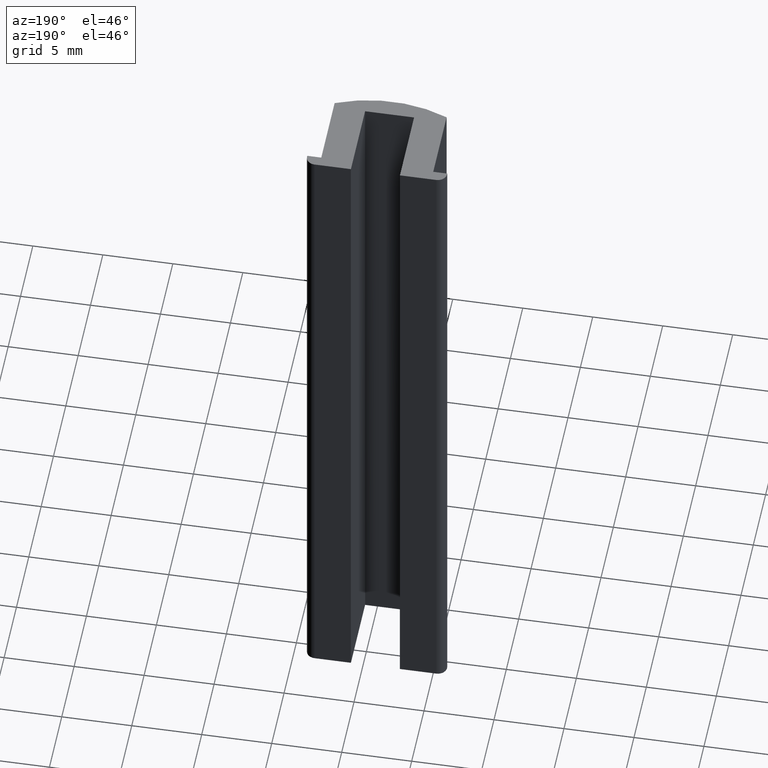
[diagram: clean part render]
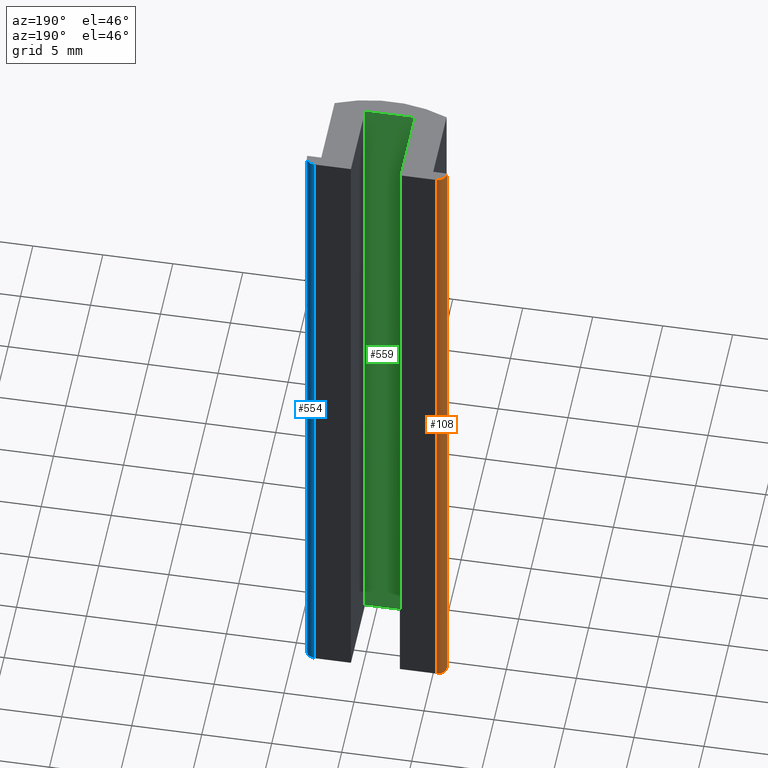
[diagram: same view with three faces highlighted in distinct colors, each labeled with its STEP entity id]
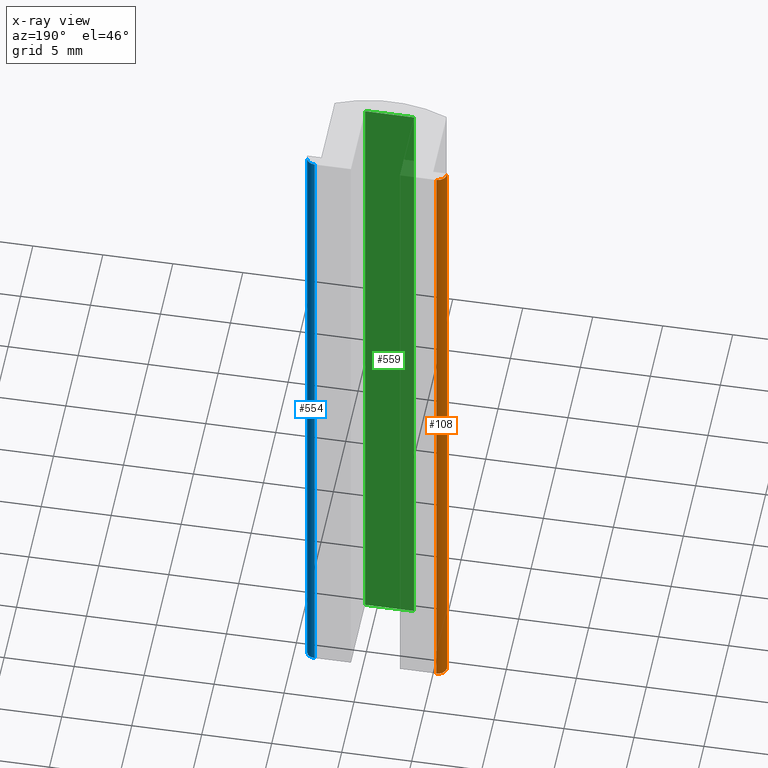
[diagram: x-ray of the same camera — body ghosted, the three highlighted faces saturated]
A machine part, auxiliary view with three faces highlighted in distinct colors.
The next image is the same camera in x-ray (body ghosted, the three faces saturated) — at least one of them is partly hidden behind the body in this view.
Their STEP definitions:

[orange] entity #108 — the highlighted cylindrical surface (edge-blend (fillet) strip) has radius 0.65 mm, axis along (-0, -0, 1).
#20 = VERTEX_POINT ( 'NONE', #398 ) ;
#29 = EDGE_CURVE ( 'NONE', #20, #543, #208, .T. ) ;
#39 = EDGE_CURVE ( 'NONE', #335, #20, #473, .T. ) ;
#108 = ADVANCED_FACE ( 'NONE', ( #148 ), #408, .T. ) ;
#148 = FACE_OUTER_BOUND ( 'NONE', #251, .T. ) ;
#170 = CARTESIAN_POINT ( 'NONE',  ( -1.000000000000000900, 6.350000000000000500, 50.00000000000000000 ) ) ;
#176 = CARTESIAN_POINT ( 'NONE',  ( -0.3500000000000100300, 6.999999999999993800, 50.00000000000000000 ) ) ;
#208 = LINE ( 'NONE', #274, #209 ) ;
#209 = VECTOR ( 'NONE', #275, 1000.000000000000000 ) ;
#233 = CARTESIAN_POINT ( 'NONE',  ( -0.3500000000000109100, 6.350000000000000500, 0.0000000000000000000 ) ) ;
#234 = DIRECTION ( 'NONE',  ( 0.0000000000000000000, 0.0000000000000000000, 1.000000000000000000 ) ) ;
#235 = DIRECTION ( 'NONE',  ( 1.000000000000000000, 0.0000000000000000000, 0.0000000000000000000 ) ) ;
#251 = EDGE_LOOP ( 'NONE', ( #371, #372, #373, #374 ) ) ;
#274 = CARTESIAN_POINT ( 'NONE',  ( -1.000000000000000900, 6.350000000000000500, 0.0000000000000000000 ) ) ;
#275 = DIRECTION ( 'NONE',  ( -0.0000000000000000000, -0.0000000000000000000, 1.000000000000000000 ) ) ;
#335 = VERTEX_POINT ( 'NONE', #420 ) ;
#359 = DIRECTION ( 'NONE',  ( -0.0000000000000000000, -0.0000000000000000000, 1.000000000000000000 ) ) ;
#360 = CARTESIAN_POINT ( 'NONE',  ( -0.3500000000000109100, 6.350000000000000500, 50.00000000000000000 ) ) ;
#361 = DIRECTION ( 'NONE',  ( 0.0000000000000000000, 0.0000000000000000000, 1.000000000000000000 ) ) ;
#362 = DIRECTION ( 'NONE',  ( 1.000000000000000000, 0.0000000000000000000, 0.0000000000000000000 ) ) ;
#371 = ORIENTED_EDGE ( 'NONE', *, *, #485, .F. ) ;
#372 = ORIENTED_EDGE ( 'NONE', *, *, #483, .F. ) ;
#373 = ORIENTED_EDGE ( 'NONE', *, *, #39, .T. ) ;
#374 = ORIENTED_EDGE ( 'NONE', *, *, #29, .T. ) ;
#398 = CARTESIAN_POINT ( 'NONE',  ( -1.000000000000000900, 6.350000000000000500, 0.0000000000000000000 ) ) ;
#404 = CARTESIAN_POINT ( 'NONE',  ( -0.3500000000000109100, 6.350000000000000500, 0.0000000000000000000 ) ) ;
#405 = DIRECTION ( 'NONE',  ( -0.0000000000000000000, -0.0000000000000000000, 1.000000000000000000 ) ) ;
#406 = DIRECTION ( 'NONE',  ( 1.000000000000000000, 0.0000000000000000000, 0.0000000000000000000 ) ) ;
#408 = CYLINDRICAL_SURFACE ( 'NONE', #506, 0.6499999999999948000 ) ;
#411 = LINE ( 'NONE', #461, #412 ) ;
#412 = VECTOR ( 'NONE', #359, 1000.000000000000000 ) ;
#414 = CIRCLE ( 'NONE', #512, 0.6499999999999948000 ) ;
#420 = CARTESIAN_POINT ( 'NONE',  ( -0.3500000000000109100, 7.000000000000000000, 0.0000000000000000000 ) ) ;
#461 = CARTESIAN_POINT ( 'NONE',  ( -0.3500000000000109100, 7.000000000000000000, 0.0000000000000000000 ) ) ;
#473 = CIRCLE ( 'NONE', #490, 0.6499999999999948000 ) ;
#483 = EDGE_CURVE ( 'NONE', #335, #549, #411, .T. ) ;
#485 = EDGE_CURVE ( 'NONE', #549, #543, #414, .T. ) ;
#490 = AXIS2_PLACEMENT_3D ( 'NONE', #233, #234, #235 ) ;
#506 = AXIS2_PLACEMENT_3D ( 'NONE', #404, #405, #406 ) ;
#512 = AXIS2_PLACEMENT_3D ( 'NONE', #360, #361, #362 ) ;
#543 = VERTEX_POINT ( 'NONE', #170 ) ;
#549 = VERTEX_POINT ( 'NONE', #176 ) ;

[blue] entity #554 — the highlighted cylindrical surface (edge-blend (fillet) strip) has radius 0.65 mm, axis along (-0, -0, 1).
#21 = EDGE_CURVE ( 'NONE', #392, #334, #532, .T. ) ;
#28 = EDGE_CURVE ( 'NONE', #334, #342, #288, .T. ) ;
#38 = EDGE_CURVE ( 'NONE', #392, #545, #226, .T. ) ;
#45 = EDGE_CURVE ( 'NONE', #545, #342, #466, .T. ) ;
#64 = CARTESIAN_POINT ( 'NONE',  ( 8.350000000000010300, 6.350000000000002300, 0.0000000000000000000 ) ) ;
#65 = DIRECTION ( 'NONE',  ( -0.0000000000000000000, -0.0000000000000000000, 1.000000000000000000 ) ) ;
#66 = DIRECTION ( 'NONE',  ( 1.000000000000000000, 0.0000000000000000000, 0.0000000000000000000 ) ) ;
#78 = FACE_OUTER_BOUND ( 'NONE', #377, .T. ) ;
#79 = CYLINDRICAL_SURFACE ( 'NONE', #504, 0.6499999999999891400 ) ;
#172 = CARTESIAN_POINT ( 'NONE',  ( 8.350000000000010300, 6.999999999999992000, 50.00000000000000000 ) ) ;
#187 = ORIENTED_EDGE ( 'NONE', *, *, #21, .F. ) ;
#207 = VECTOR ( 'NONE', #273, 1000.000000000000000 ) ;
#226 = LINE ( 'NONE', #231, #471 ) ;
#231 = CARTESIAN_POINT ( 'NONE',  ( 8.350000000000010300, 6.999999999999992000, 0.0000000000000000000 ) ) ;
#232 = DIRECTION ( 'NONE',  ( -0.0000000000000000000, -0.0000000000000000000, 1.000000000000000000 ) ) ;
#272 = CARTESIAN_POINT ( 'NONE',  ( 9.000000000000000000, 6.350000000000002300, 0.0000000000000000000 ) ) ;
#273 = DIRECTION ( 'NONE',  ( -0.0000000000000000000, -0.0000000000000000000, 1.000000000000000000 ) ) ;
#288 = LINE ( 'NONE', #272, #207 ) ;
#334 = VERTEX_POINT ( 'NONE', #419 ) ;
#342 = VERTEX_POINT ( 'NONE', #427 ) ;
#353 = CARTESIAN_POINT ( 'NONE',  ( 8.350000000000010300, 6.350000000000002300, 50.00000000000000000 ) ) ;
#354 = DIRECTION ( 'NONE',  ( -0.0000000000000000000, -0.0000000000000000000, -1.000000000000000000 ) ) ;
#355 = DIRECTION ( 'NONE',  ( -1.000000000000000000, 0.0000000000000000000, 0.0000000000000000000 ) ) ;
#375 = ORIENTED_EDGE ( 'NONE', *, *, #45, .T. ) ;
#376 = ORIENTED_EDGE ( 'NONE', *, *, #28, .F. ) ;
#377 = EDGE_LOOP ( 'NONE', ( #375, #376, #187, #530 ) ) ;
#392 = VERTEX_POINT ( 'NONE', #455 ) ;
#419 = CARTESIAN_POINT ( 'NONE',  ( 9.000000000000000000, 6.350000000000002300, 0.0000000000000000000 ) ) ;
#427 = CARTESIAN_POINT ( 'NONE',  ( 9.000000000000000000, 6.350000000000002300, 50.00000000000000000 ) ) ;
#455 = CARTESIAN_POINT ( 'NONE',  ( 8.350000000000010300, 6.999999999999993800, 0.0000000000000000000 ) ) ;
#466 = CIRCLE ( 'NONE', #510, 0.6499999999999891400 ) ;
#471 = VECTOR ( 'NONE', #232, 1000.000000000000000 ) ;
#484 = AXIS2_PLACEMENT_3D ( 'NONE', #535, #536, #537 ) ;
#504 = AXIS2_PLACEMENT_3D ( 'NONE', #64, #65, #66 ) ;
#510 = AXIS2_PLACEMENT_3D ( 'NONE', #353, #354, #355 ) ;
#530 = ORIENTED_EDGE ( 'NONE', *, *, #38, .T. ) ;
#532 = CIRCLE ( 'NONE', #484, 0.6499999999999891400 ) ;
#535 = CARTESIAN_POINT ( 'NONE',  ( 8.350000000000010300, 6.350000000000002300, 0.0000000000000000000 ) ) ;
#536 = DIRECTION ( 'NONE',  ( -0.0000000000000000000, -0.0000000000000000000, -1.000000000000000000 ) ) ;
#537 = DIRECTION ( 'NONE',  ( -1.000000000000000000, 0.0000000000000000000, 0.0000000000000000000 ) ) ;
#545 = VERTEX_POINT ( 'NONE', #172 ) ;
#554 = ADVANCED_FACE ( 'NONE', ( #78 ), #79, .T. ) ;

[green] entity #559 — the highlighted planar face has unit normal (0, -1, 0).
#23 = EDGE_CURVE ( 'NONE', #546, #336, #534, .T. ) ;
#25 = EDGE_CURVE ( 'NONE', #336, #340, #281, .T. ) ;
#37 = EDGE_CURVE ( 'NONE', #547, #340, #224, .T. ) ;
#49 = EDGE_CURVE ( 'NONE', #546, #547, #141, .T. ) ;
#102 = FACE_OUTER_BOUND ( 'NONE', #380, .T. ) ;
#114 = CARTESIAN_POINT ( 'NONE',  ( 5.750000000000000000, 1.250000000000000000, 50.00000000000000000 ) ) ;
#115 = DIRECTION ( 'NONE',  ( -1.000000000000000000, 0.0000000000000000000, 0.0000000000000000000 ) ) ;
#132 = PLANE ( 'NONE',  #499 ) ;
#133 = CARTESIAN_POINT ( 'NONE',  ( 5.750000000000000000, 1.250000000000000000, 50.00000000000000000 ) ) ;
#134 = DIRECTION ( 'NONE',  ( 0.0000000000000000000, -1.000000000000000000, 0.0000000000000000000 ) ) ;
#135 = DIRECTION ( 'NONE',  ( 0.0000000000000000000, -0.0000000000000000000, -1.000000000000000000 ) ) ;
#141 = LINE ( 'NONE', #114, #142 ) ;
#142 = VECTOR ( 'NONE', #115, 1000.000000000000000 ) ;
#173 = CARTESIAN_POINT ( 'NONE',  ( 5.750000000000000000, 1.250000000000000000, 50.00000000000000000 ) ) ;
#174 = CARTESIAN_POINT ( 'NONE',  ( 2.250000000000000400, 1.250000000000000000, 50.00000000000000000 ) ) ;
#224 = LINE ( 'NONE', #229, #225 ) ;
#225 = VECTOR ( 'NONE', #230, 1000.000000000000000 ) ;
#229 = CARTESIAN_POINT ( 'NONE',  ( 2.250000000000000400, 1.250000000000000000, 50.00000000000000000 ) ) ;
#230 = DIRECTION ( 'NONE',  ( -0.0000000000000000000, -0.0000000000000000000, -1.000000000000000000 ) ) ;
#280 = VECTOR ( 'NONE', #541, 1000.000000000000000 ) ;
#281 = LINE ( 'NONE', #295, #283 ) ;
#283 = VECTOR ( 'NONE', #296, 1000.000000000000000 ) ;
#295 = CARTESIAN_POINT ( 'NONE',  ( 5.750000000000000000, 1.250000000000000000, 0.0000000000000000000 ) ) ;
#296 = DIRECTION ( 'NONE',  ( -1.000000000000000000, 0.0000000000000000000, 0.0000000000000000000 ) ) ;
#320 = ORIENTED_EDGE ( 'NONE', *, *, #25, .T. ) ;
#321 = ORIENTED_EDGE ( 'NONE', *, *, #37, .F. ) ;
#322 = ORIENTED_EDGE ( 'NONE', *, *, #49, .F. ) ;
#323 = ORIENTED_EDGE ( 'NONE', *, *, #23, .T. ) ;
#336 = VERTEX_POINT ( 'NONE', #421 ) ;
#340 = VERTEX_POINT ( 'NONE', #425 ) ;
#380 = EDGE_LOOP ( 'NONE', ( #320, #321, #322, #323 ) ) ;
#421 = CARTESIAN_POINT ( 'NONE',  ( 5.750000000000000000, 1.250000000000000000, 0.0000000000000000000 ) ) ;
#425 = CARTESIAN_POINT ( 'NONE',  ( 2.250000000000000400, 1.250000000000000000, 0.0000000000000000000 ) ) ;
#499 = AXIS2_PLACEMENT_3D ( 'NONE', #133, #134, #135 ) ;
#534 = LINE ( 'NONE', #540, #280 ) ;
#540 = CARTESIAN_POINT ( 'NONE',  ( 5.750000000000000000, 1.250000000000000000, 50.00000000000000000 ) ) ;
#541 = DIRECTION ( 'NONE',  ( -0.0000000000000000000, -0.0000000000000000000, -1.000000000000000000 ) ) ;
#546 = VERTEX_POINT ( 'NONE', #173 ) ;
#547 = VERTEX_POINT ( 'NONE', #174 ) ;
#559 = ADVANCED_FACE ( 'NONE', ( #102 ), #132, .F. ) ;